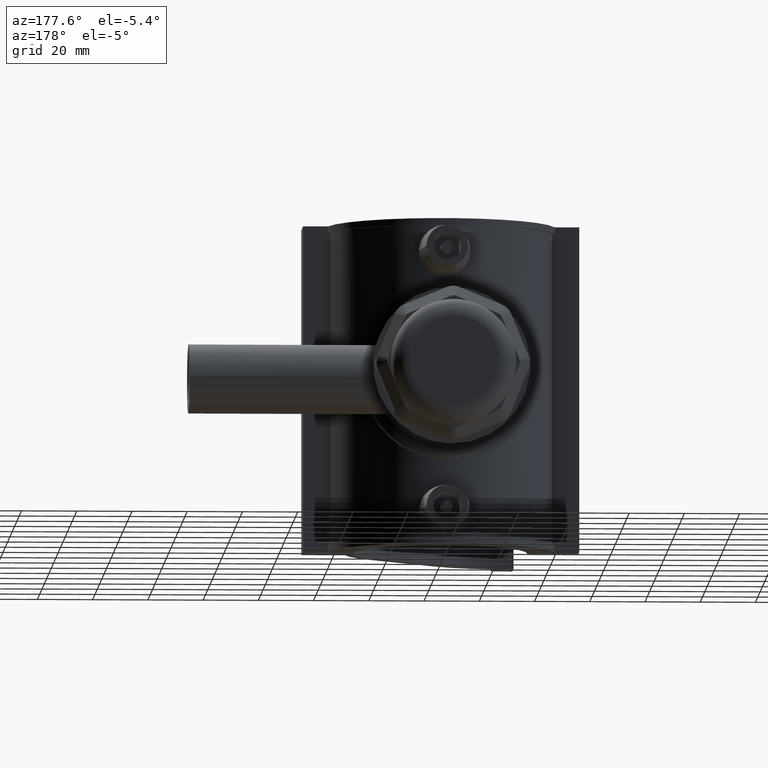
[diagram: clean part render]
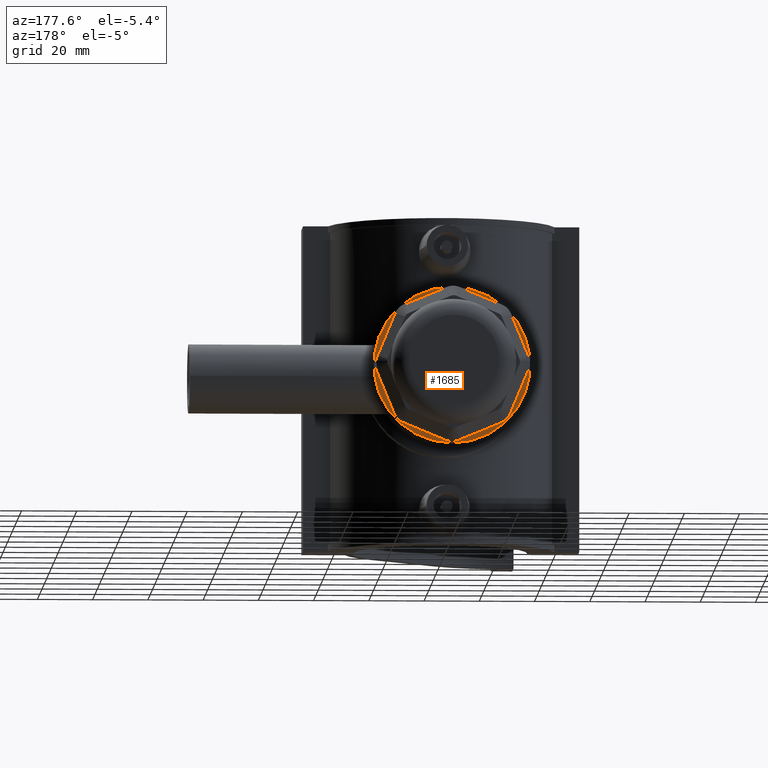
[diagram: same view with one face highlighted and labeled with its STEP entity id]
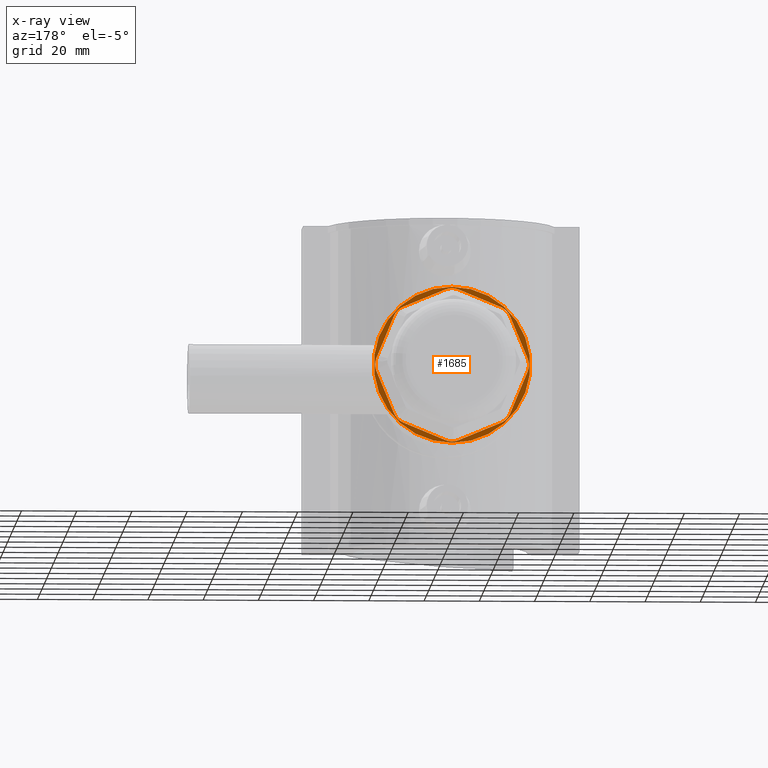
[diagram: x-ray of the same camera — body ghosted, the highlighted face saturated]
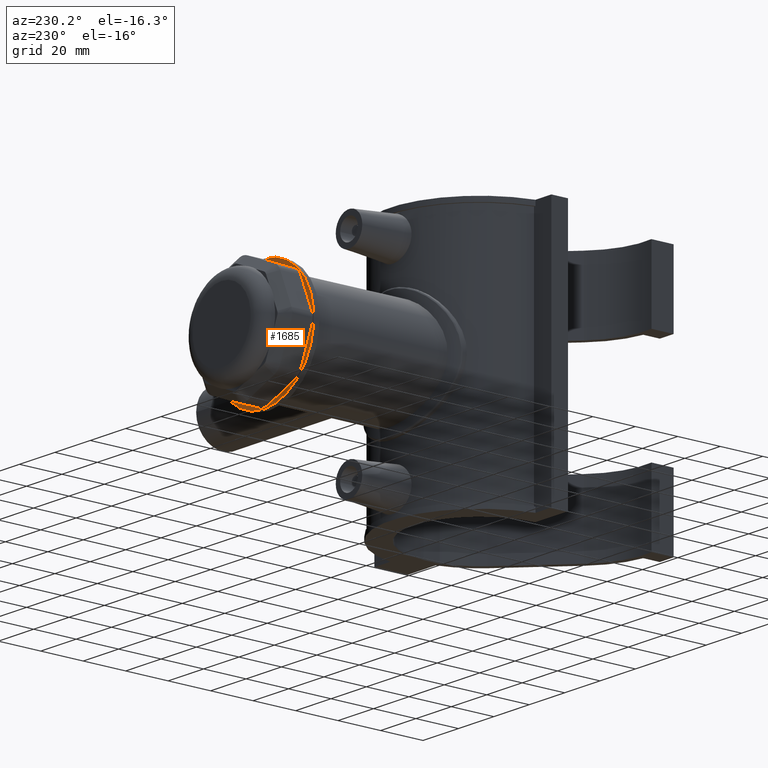
[diagram: same view with one face highlighted and labeled with its STEP entity id]
A machine part, auxiliary view. The second image highlights one B-rep face of the part: STEP entity #1685.
The next image is the same camera in x-ray: the body ghosted, the highlighted face saturated — about 0% of this face is hidden behind the body in this view.
A second angle (auxiliary view) of the same face is appended — the face is thin or edge-on in the first view.
In plain terms, the highlighted planar face has unit normal (0, 1, 0).
Its self-contained STEP definition (entity closure, byte-faithful):
#72=LINE('',#2914,#215);
#75=LINE('',#2922,#218);
#78=LINE('',#2930,#221);
#81=LINE('',#2938,#224);
#84=LINE('',#2950,#227);
#87=LINE('',#2958,#230);
#90=LINE('',#2966,#233);
#92=LINE('',#2972,#235);
#215=VECTOR('',#2089,16.4790597291996);
#218=VECTOR('',#2098,16.4790597291996);
#221=VECTOR('',#2107,16.4790597291996);
#224=VECTOR('',#2116,16.4790597291996);
#227=VECTOR('',#2131,16.4790597291996);
#230=VECTOR('',#2140,16.4790597291996);
#233=VECTOR('',#2149,16.4790597291996);
#235=VECTOR('',#2157,16.4790597291996);
#342=PLANE('',#1830);
#406=CIRCLE('',#1804,6.3);
#407=CIRCLE('',#1807,6.3);
#408=CIRCLE('',#1810,6.3);
#409=CIRCLE('',#1813,6.3);
#411=CIRCLE('',#1819,6.3);
#412=CIRCLE('',#1822,6.3);
#413=CIRCLE('',#1825,6.3);
#414=CIRCLE('',#1828,6.3);
#415=CIRCLE('',#1831,28.35);
#458=FACE_BOUND('',#637,.T.);
#524=FACE_OUTER_BOUND('',#636,.T.);
#636=EDGE_LOOP('',(#1343));
#637=EDGE_LOOP('',(#1344,#1345,#1346,#1347,#1348,#1349,#1350,#1351,#1352,
#1353,#1354,#1355,#1356,#1357,#1358,#1359));
#793=VERTEX_POINT('',#2906);
#794=VERTEX_POINT('',#2908);
#795=VERTEX_POINT('',#2912);
#796=VERTEX_POINT('',#2916);
#797=VERTEX_POINT('',#2920);
#798=VERTEX_POINT('',#2924);
#799=VERTEX_POINT('',#2928);
#800=VERTEX_POINT('',#2932);
#801=VERTEX_POINT('',#2936);
#803=VERTEX_POINT('',#2944);
#804=VERTEX_POINT('',#2948);
#805=VERTEX_POINT('',#2952);
#806=VERTEX_POINT('',#2956);
#807=VERTEX_POINT('',#2960);
#808=VERTEX_POINT('',#2964);
#809=VERTEX_POINT('',#2968);
#810=VERTEX_POINT('',#2974);
#979=EDGE_CURVE('',#793,#794,#406,.F.);
#982=EDGE_CURVE('',#793,#795,#72,.T.);
#984=EDGE_CURVE('',#796,#795,#407,.F.);
#986=EDGE_CURVE('',#796,#797,#75,.T.);
#988=EDGE_CURVE('',#798,#797,#408,.F.);
#990=EDGE_CURVE('',#798,#799,#78,.T.);
#992=EDGE_CURVE('',#800,#799,#409,.F.);
#994=EDGE_CURVE('',#800,#801,#81,.T.);
#997=EDGE_CURVE('',#803,#801,#411,.F.);
#999=EDGE_CURVE('',#803,#804,#84,.T.);
#1001=EDGE_CURVE('',#805,#804,#412,.F.);
#1003=EDGE_CURVE('',#805,#806,#87,.T.);
#1005=EDGE_CURVE('',#807,#806,#413,.F.);
#1007=EDGE_CURVE('',#807,#808,#90,.T.);
#1009=EDGE_CURVE('',#809,#808,#414,.F.);
#1010=EDGE_CURVE('',#809,#794,#92,.T.);
#1011=EDGE_CURVE('',#810,#810,#415,.T.);
#1343=ORIENTED_EDGE('',*,*,#1011,.T.);
#1344=ORIENTED_EDGE('',*,*,#982,.T.);
#1345=ORIENTED_EDGE('',*,*,#984,.F.);
#1346=ORIENTED_EDGE('',*,*,#986,.T.);
#1347=ORIENTED_EDGE('',*,*,#988,.F.);
#1348=ORIENTED_EDGE('',*,*,#990,.T.);
#1349=ORIENTED_EDGE('',*,*,#992,.F.);
#1350=ORIENTED_EDGE('',*,*,#994,.T.);
#1351=ORIENTED_EDGE('',*,*,#997,.F.);
#1352=ORIENTED_EDGE('',*,*,#999,.T.);
#1353=ORIENTED_EDGE('',*,*,#1001,.F.);
#1354=ORIENTED_EDGE('',*,*,#1003,.T.);
#1355=ORIENTED_EDGE('',*,*,#1005,.F.);
#1356=ORIENTED_EDGE('',*,*,#1007,.T.);
#1357=ORIENTED_EDGE('',*,*,#1009,.F.);
#1358=ORIENTED_EDGE('',*,*,#1010,.T.);
#1359=ORIENTED_EDGE('',*,*,#979,.F.);
#1685=ADVANCED_FACE('',(#524,#458),#342,.T.);
#1804=AXIS2_PLACEMENT_3D('',#2909,#2083,#2084);
#1807=AXIS2_PLACEMENT_3D('',#2918,#2093,#2094);
#1810=AXIS2_PLACEMENT_3D('',#2926,#2102,#2103);
#1813=AXIS2_PLACEMENT_3D('',#2934,#2111,#2112);
#1819=AXIS2_PLACEMENT_3D('',#2946,#2126,#2127);
#1822=AXIS2_PLACEMENT_3D('',#2954,#2135,#2136);
#1825=AXIS2_PLACEMENT_3D('',#2962,#2144,#2145);
#1828=AXIS2_PLACEMENT_3D('',#2970,#2153,#2154);
#1830=AXIS2_PLACEMENT_3D('',#2973,#2158,#2159);
#1831=AXIS2_PLACEMENT_3D('',#2975,#2160,#2161);
#2083=DIRECTION('center_axis',(0.,-1.,-3.06161699786838E-16));
#2084=DIRECTION('ref_axis',(-4.29177408014035E-16,0.,1.));
#2089=DIRECTION('',(-0.923879532511287,1.17163010133158E-16,-0.38268343236509));
#2093=DIRECTION('center_axis',(0.,-1.,-3.06161699786838E-16));
#2094=DIRECTION('ref_axis',(-0.707106781186548,0.,0.707106781186548));
#2098=DIRECTION('',(-0.38268343236509,2.82856528071925E-16,-0.923879532511287));
#2102=DIRECTION('center_axis',(0.,-1.,-3.06161699786838E-16));
#2103=DIRECTION('ref_axis',(-1.,0.,-1.43059136004678E-16));
#2107=DIRECTION('',(0.38268343236509,2.82856528071925E-16,-0.923879532511287));
#2111=DIRECTION('center_axis',(0.,-1.,-3.06161699786838E-16));
#2112=DIRECTION('ref_axis',(-0.707106781186548,0.,-0.707106781186548));
#2116=DIRECTION('',(0.923879532511287,1.17163010133157E-16,-0.38268343236509));
#2126=DIRECTION('center_axis',(0.,-1.,-3.06161699786838E-16));
#2127=DIRECTION('ref_axis',(4.53020597348149E-16,0.,-1.));
#2131=DIRECTION('',(0.923879532511286,-1.17163010133158E-16,0.38268343236509));
#2135=DIRECTION('center_axis',(0.,-1.,-3.06161699786838E-16));
#2136=DIRECTION('ref_axis',(0.707106781186548,0.,-0.707106781186547));
#2140=DIRECTION('',(0.382683432365089,-2.82856528071925E-16,0.923879532511287));
#2144=DIRECTION('center_axis',(0.,-1.,-3.06161699786838E-16));
#2145=DIRECTION('ref_axis',(1.,0.,5.00706976016374E-16));
#2149=DIRECTION('',(-0.38268343236509,-2.82856528071925E-16,0.923879532511287));
#2153=DIRECTION('center_axis',(0.,-1.,-3.06161699786838E-16));
#2154=DIRECTION('ref_axis',(0.707106781186547,0.,0.707106781186548));
#2157=DIRECTION('',(-0.923879532511287,-1.17163010133157E-16,0.382683432365089));
#2158=DIRECTION('center_axis',(0.,1.,3.06161699786838E-16));
#2159=DIRECTION('ref_axis',(0.,0.,1.));
#2160=DIRECTION('center_axis',(0.,1.,3.06161699786838E-16));
#2161=DIRECTION('ref_axis',(1.,0.,0.));
#2906=CARTESIAN_POINT('',(-2.41090562390007,101.7,27.351370192979));
#2908=CARTESIAN_POINT('',(2.41090562390006,101.7,27.351370192979));
#2909=CARTESIAN_POINT('Origin',(-3.33066907387547E-15,101.7,21.5309291381579));
#2912=CARTESIAN_POINT('',(-17.6355716227386,101.7,21.0451070536596));
#2914=CARTESIAN_POINT('',(-0.701626703632353,101.7,28.0593767036324));
#2916=CARTESIAN_POINT('',(-21.0451070536596,101.7,17.6355716227386));
#2918=CARTESIAN_POINT('Origin',(-15.2246659988385,101.7,15.2246659988385));
#2920=CARTESIAN_POINT('',(-27.351370192979,101.7,2.41090562390008));
#2922=CARTESIAN_POINT('',(-17.8123653269517,101.7,25.4401005430063));
#2924=CARTESIAN_POINT('',(-27.351370192979,101.7,-2.41090562390005));
#2926=CARTESIAN_POINT('Origin',(-21.5309291381579,101.7,1.92438657601694E-14));
#2928=CARTESIAN_POINT('',(-21.0451070536596,101.7,-17.6355716227385));
#2930=CARTESIAN_POINT('',(-30.584111919687,101.7,5.39362329636768));
#2932=CARTESIAN_POINT('',(-17.6355716227385,101.7,-21.0451070536596));
#2934=CARTESIAN_POINT('Origin',(-15.2246659988385,101.7,-15.2246659988385));
#2936=CARTESIAN_POINT('',(-2.41090562390005,101.7,-27.351370192979));
#2938=CARTESIAN_POINT('',(-19.3448505430063,101.7,-20.3371005430062));
#2944=CARTESIAN_POINT('',(2.41090562390009,101.7,-27.351370192979));
#2946=CARTESIAN_POINT('Origin',(1.4432899320127E-14,101.7,-21.5309291381579));
#2948=CARTESIAN_POINT('',(17.6355716227386,101.7,-21.0451070536596));
#2950=CARTESIAN_POINT('',(9.32161191968699,101.7,-24.4888619196869));
#2952=CARTESIAN_POINT('',(21.0451070536596,101.7,-17.6355716227385));
#2954=CARTESIAN_POINT('Origin',(15.2246659988385,101.7,-15.2246659988384));
#2956=CARTESIAN_POINT('',(27.351370192979,101.7,-2.41090562390003));
#2958=CARTESIAN_POINT('',(26.4323505430063,101.7,-4.62961532695161));
#2960=CARTESIAN_POINT('',(27.351370192979,101.7,2.4109056239001));
#2962=CARTESIAN_POINT('Origin',(21.5309291381579,101.7,3.47869881049216E-14));
#2964=CARTESIAN_POINT('',(21.0451070536596,101.7,17.6355716227386));
#2966=CARTESIAN_POINT('',(21.9641267036323,101.7,15.416861919687));
#2968=CARTESIAN_POINT('',(17.6355716227385,101.7,21.0451070536596));
#2970=CARTESIAN_POINT('Origin',(15.2246659988385,101.7,15.2246659988385));
#2972=CARTESIAN_POINT('',(10.7248653269516,101.7,23.9076153269517));
#2973=CARTESIAN_POINT('Origin',(0.,101.7,24.381));
#2974=CARTESIAN_POINT('',(0.,101.7,28.35));
#2975=CARTESIAN_POINT('Origin',(0.,101.7,2.14925513250361E-14));